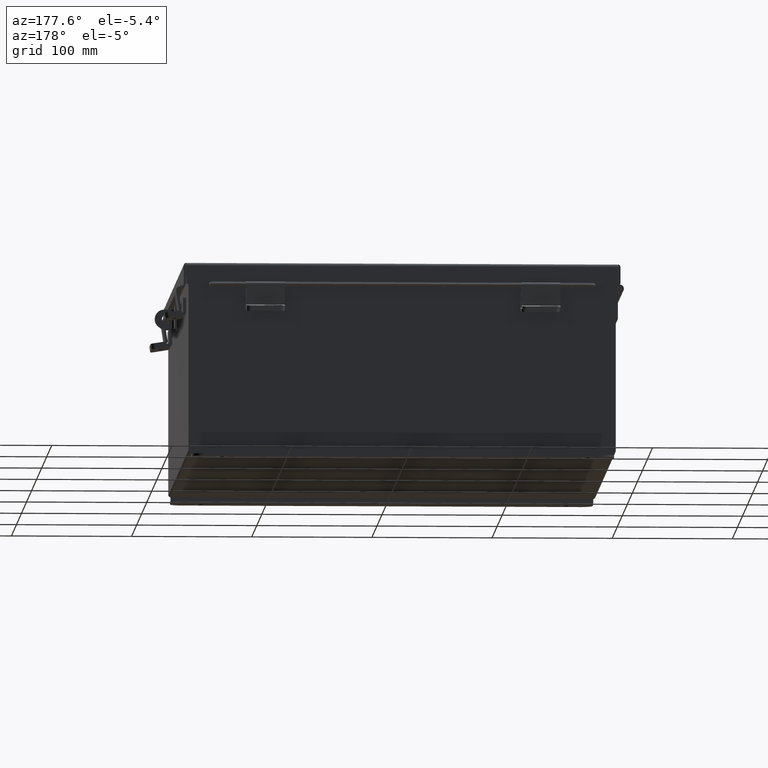
[diagram: clean part render]
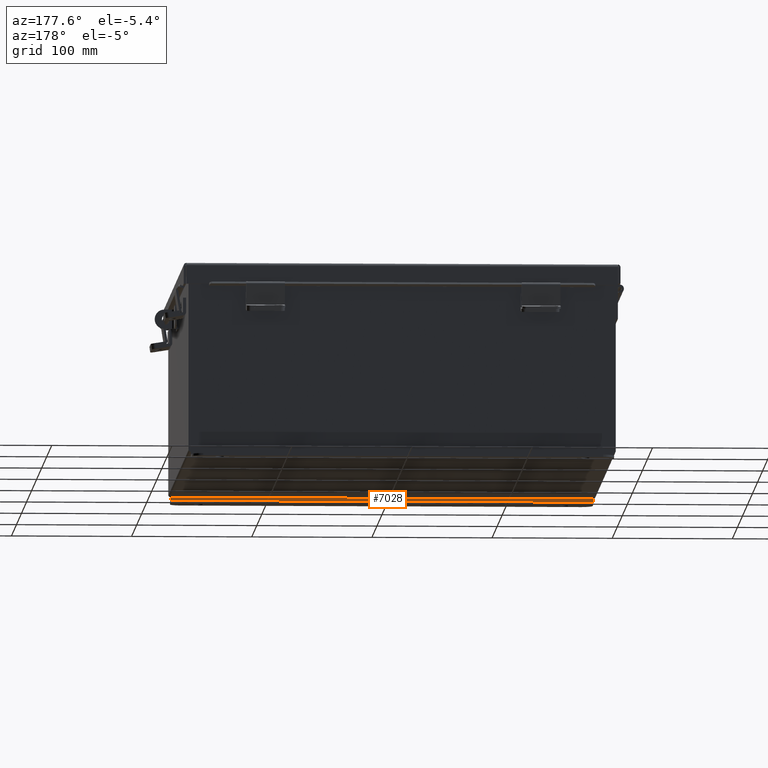
[diagram: same view with one face highlighted and labeled with its STEP entity id]
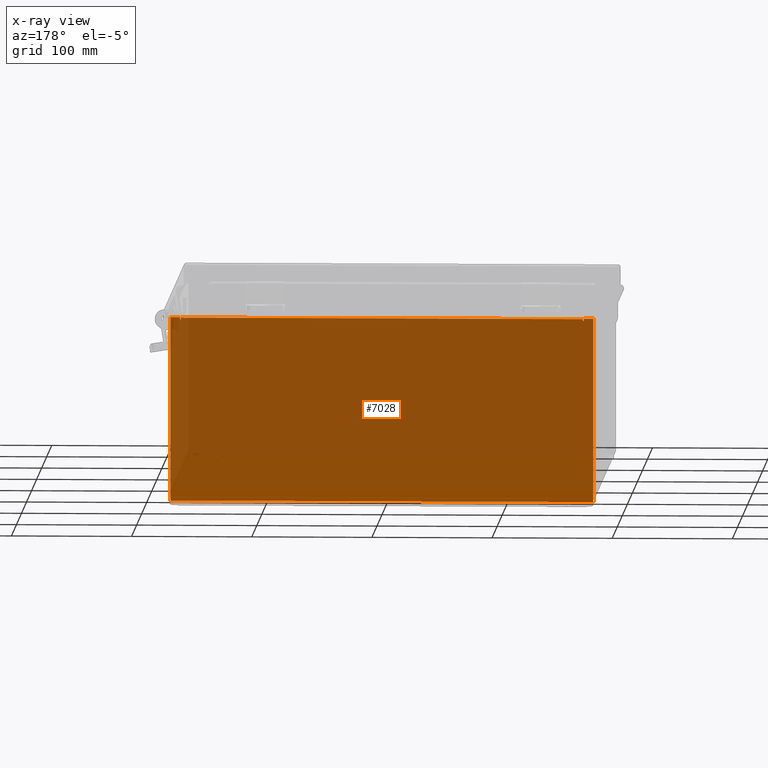
[diagram: x-ray of the same camera — body ghosted, the highlighted face saturated]
A machine part, auxiliary view. The second image highlights one B-rep face of the part: STEP entity #7028.
The next image is the same camera in x-ray: the body ghosted, the highlighted face saturated — about 95% of this face is hidden behind the body in this view.
In plain terms, the highlighted planar face has unit normal (-0, 1, -0).
Its self-contained STEP definition (entity closure, byte-faithful):
#272 = CARTESIAN_POINT ( 'NONE',  ( 6.925300000000007100, -0.07470000000000015500, 2.925300000000001300 ) ) ;
#332 = CARTESIAN_POINT ( 'NONE',  ( -6.925299999999992000, -0.07469999999999142600, 2.925300000000001300 ) ) ;
#717 = LINE ( 'NONE', #8392, #17252 ) ;
#792 = EDGE_CURVE ( 'NONE', #18503, #5689, #3924, .T. ) ;
#810 = ORIENTED_EDGE ( 'NONE', *, *, #15915, .F. ) ;
#1333 = CARTESIAN_POINT ( 'NONE',  ( 6.582300000000007100, -0.07470000000000015500, 2.912299999999997900 ) ) ;
#1521 = DIRECTION ( 'NONE',  ( 0.0000000000000000000, 0.0000000000000000000, 1.000000000000000000 ) ) ;
#1544 = CARTESIAN_POINT ( 'NONE',  ( -6.582299999999990300, -0.07469999999999142600, 2.874949999999998800 ) ) ;
#1793 = VECTOR ( 'NONE', #10428, 39.37007874015748100 ) ;
#2011 = VECTOR ( 'NONE', #1521, 39.37007874015748100 ) ;
#2071 = CARTESIAN_POINT ( 'NONE',  ( -6.925299999999992000, -0.07469999999999142600, 2.925300000000001300 ) ) ;
#2074 = VECTOR ( 'NONE', #14990, 39.37007874015748100 ) ;
#2188 = CARTESIAN_POINT ( 'NONE',  ( 6.619650000000007100, -0.07470000000000015500, 2.874949999999998800 ) ) ;
#2307 = ORIENTED_EDGE ( 'NONE', *, *, #12457, .T. ) ;
#2788 = EDGE_CURVE ( 'NONE', #12034, #13141, #717, .T. ) ;
#2919 = LINE ( 'NONE', #332, #14839 ) ;
#2923 = VERTEX_POINT ( 'NONE', #3354 ) ;
#2950 = VERTEX_POINT ( 'NONE', #1544 ) ;
#3354 = CARTESIAN_POINT ( 'NONE',  ( -6.619649999999990300, -0.07469999999999142600, 2.874949999999998800 ) ) ;
#3423 = VECTOR ( 'NONE', #17203, 39.37007874015748100 ) ;
#3924 = LINE ( 'NONE', #8855, #3423 ) ;
#4095 = CARTESIAN_POINT ( 'NONE',  ( -6.925299999999992000, -0.07469999999999142600, 2.925300000000001300 ) ) ;
#4108 = VERTEX_POINT ( 'NONE', #18091 ) ;
#4765 = DIRECTION ( 'NONE',  ( 1.000000000000000000, 4.910036603141682400E-031, -0.0000000000000000000 ) ) ;
#5083 = CARTESIAN_POINT ( 'NONE',  ( 6.600975000000006300, -0.07469999999999797600, 2.874949999999998800 ) ) ;
#5190 = VERTEX_POINT ( 'NONE', #14986 ) ;
#5607 = VERTEX_POINT ( 'NONE', #14219 ) ;
#5689 = VERTEX_POINT ( 'NONE', #15426 ) ;
#5943 = LINE ( 'NONE', #8863, #1793 ) ;
#6580 = AXIS2_PLACEMENT_3D ( 'NONE', #13870, #13129, #13092 ) ;
#6617 = FACE_OUTER_BOUND ( 'NONE', #8760, .T. ) ;
#6645 = DIRECTION ( 'NONE',  ( 0.0000000000000000000, 0.0000000000000000000, -1.000000000000000000 ) ) ;
#6831 = CARTESIAN_POINT ( 'NONE',  ( -6.600974999999990300, -0.07469999999998923300, 2.874949999999998800 ) ) ;
#7028 = ADVANCED_FACE ( 'NONE', ( #6617 ), #13191, .T. ) ;
#7079 = DIRECTION ( 'NONE',  ( 0.0000000000000000000, 0.0000000000000000000, -1.000000000000000000 ) ) ;
#7560 = EDGE_CURVE ( 'NONE', #4108, #18503, #11533, .T. ) ;
#7613 = CARTESIAN_POINT ( 'NONE',  ( -6.925299999999992000, -0.07469999999999142600, 2.925300000000001300 ) ) ;
#7941 = VERTEX_POINT ( 'NONE', #9395 ) ;
#8392 = CARTESIAN_POINT ( 'NONE',  ( 6.619650000000007100, -0.07469999999999797600, 2.874949999999998800 ) ) ;
#8406 = DIRECTION ( 'NONE',  ( 0.0000000000000000000, 0.0000000000000000000, -1.000000000000000000 ) ) ;
#8451 = AXIS2_PLACEMENT_3D ( 'NONE', #5083, #15965, #6645 ) ;
#8760 = EDGE_LOOP ( 'NONE', ( #11331, #14621, #14022, #810, #2307, #18147, #13362, #15096, #15640, #16856, #18528, #11685 ) ) ;
#8855 = CARTESIAN_POINT ( 'NONE',  ( 6.582300000000007100, -0.07469999999999797600, 2.912299999999997900 ) ) ;
#8863 = CARTESIAN_POINT ( 'NONE',  ( -6.619649999999990300, -0.07469999999999033000, 2.925300000000000000 ) ) ;
#9062 = VERTEX_POINT ( 'NONE', #272 ) ;
#9107 = EDGE_CURVE ( 'NONE', #5689, #12034, #18419, .T. ) ;
#9316 = CARTESIAN_POINT ( 'NONE',  ( -6.582299999999990300, -0.07469999999998923300, 2.874949999999998800 ) ) ;
#9395 = CARTESIAN_POINT ( 'NONE',  ( 6.925300000000007100, -0.07470000000000781600, -3.099299999999995100 ) ) ;
#9833 = VECTOR ( 'NONE', #7079, 39.37007874015748100 ) ;
#10428 = DIRECTION ( 'NONE',  ( 0.0000000000000000000, 2.272018564740578300E-014, -1.000000000000000000 ) ) ;
#11033 = VECTOR ( 'NONE', #17971, 39.37007874015748100 ) ;
#11331 = ORIENTED_EDGE ( 'NONE', *, *, #11999, .F. ) ;
#11533 = LINE ( 'NONE', #13262, #11033 ) ;
#11685 = ORIENTED_EDGE ( 'NONE', *, *, #17425, .F. ) ;
#11824 = EDGE_CURVE ( 'NONE', #9062, #7941, #13953, .T. ) ;
#11999 = EDGE_CURVE ( 'NONE', #2923, #2950, #15166, .T. ) ;
#12034 = VERTEX_POINT ( 'NONE', #2188 ) ;
#12457 = EDGE_CURVE ( 'NONE', #5190, #7941, #19273, .T. ) ;
#12957 = DIRECTION ( 'NONE',  ( 1.000000000000000000, 4.910036603141682400E-031, 0.0000000000000000000 ) ) ;
#13092 = DIRECTION ( 'NONE',  ( 0.0000000000000000000, 0.0000000000000000000, -1.000000000000000000 ) ) ;
#13129 = DIRECTION ( 'NONE',  ( -4.910036603141682400E-031, -1.000000000000000000, -0.0000000000000000000 ) ) ;
#13141 = VERTEX_POINT ( 'NONE', #15339 ) ;
#13191 = PLANE ( 'NONE',  #6580 ) ;
#13262 = CARTESIAN_POINT ( 'NONE',  ( -6.582299999999992000, -0.07469999999998923300, 2.912300000000000100 ) ) ;
#13362 = ORIENTED_EDGE ( 'NONE', *, *, #20140, .F. ) ;
#13863 = DIRECTION ( 'NONE',  ( 2.170286390199955400E-014, -2.272018564740578300E-014, 1.000000000000000000 ) ) ;
#13870 = CARTESIAN_POINT ( 'NONE',  ( 0.0000000000000000000, -0.07470000000000015500, 0.0000000000000000000 ) ) ;
#13953 = LINE ( 'NONE', #16379, #9833 ) ;
#13998 = LINE ( 'NONE', #4095, #2074 ) ;
#14022 = ORIENTED_EDGE ( 'NONE', *, *, #15751, .F. ) ;
#14070 = CARTESIAN_POINT ( 'NONE',  ( -6.925299999999992000, -0.07470000000000015500, -3.099299999999999500 ) ) ;
#14219 = CARTESIAN_POINT ( 'NONE',  ( -6.619649999999990300, -0.07469999999999142600, 2.925300000000000000 ) ) ;
#14621 = ORIENTED_EDGE ( 'NONE', *, *, #16707, .F. ) ;
#14839 = VECTOR ( 'NONE', #19012, 39.37007874015748100 ) ;
#14986 = CARTESIAN_POINT ( 'NONE',  ( -6.925299999999991100, -0.07470000000000015500, -3.099299999999999500 ) ) ;
#14990 = DIRECTION ( 'NONE',  ( 0.0000000000000000000, 0.0000000000000000000, 1.000000000000000000 ) ) ;
#15096 = ORIENTED_EDGE ( 'NONE', *, *, #2788, .F. ) ;
#15166 = CIRCLE ( 'NONE', #19160, 0.01867500000000003900 ) ;
#15339 = CARTESIAN_POINT ( 'NONE',  ( 6.619650000000008000, -0.07470000000000015500, 2.925300000000000000 ) ) ;
#15426 = CARTESIAN_POINT ( 'NONE',  ( 6.582300000000007100, -0.07470000000000015500, 2.874949999999998800 ) ) ;
#15640 = ORIENTED_EDGE ( 'NONE', *, *, #9107, .F. ) ;
#15751 = EDGE_CURVE ( 'NONE', #17351, #5607, #15989, .T. ) ;
#15915 = EDGE_CURVE ( 'NONE', #5190, #17351, #13998, .T. ) ;
#15965 = DIRECTION ( 'NONE',  ( -4.910036603141682400E-031, -1.000000000000000000, 0.0000000000000000000 ) ) ;
#15989 = LINE ( 'NONE', #2071, #16488 ) ;
#16379 = CARTESIAN_POINT ( 'NONE',  ( 6.925300000000007100, -0.07470000000000015500, 2.925300000000001300 ) ) ;
#16488 = VECTOR ( 'NONE', #12957, 39.37007874015748100 ) ;
#16707 = EDGE_CURVE ( 'NONE', #5607, #2923, #5943, .T. ) ;
#16856 = ORIENTED_EDGE ( 'NONE', *, *, #792, .F. ) ;
#17203 = DIRECTION ( 'NONE',  ( 0.0000000000000000000, 0.0000000000000000000, -1.000000000000000000 ) ) ;
#17252 = VECTOR ( 'NONE', #13863, 39.37007874015748100 ) ;
#17351 = VERTEX_POINT ( 'NONE', #7613 ) ;
#17425 = EDGE_CURVE ( 'NONE', #2950, #4108, #19040, .T. ) ;
#17724 = DIRECTION ( 'NONE',  ( -4.910036603141682400E-031, -1.000000000000000000, 0.0000000000000000000 ) ) ;
#17971 = DIRECTION ( 'NONE',  ( 1.000000000000000000, 4.910036603141682400E-031, -0.0000000000000000000 ) ) ;
#18091 = CARTESIAN_POINT ( 'NONE',  ( -6.582299999999990300, -0.07469999999999142600, 2.912300000000000100 ) ) ;
#18147 = ORIENTED_EDGE ( 'NONE', *, *, #11824, .F. ) ;
#18419 = CIRCLE ( 'NONE', #8451, 0.01867500000000003900 ) ;
#18503 = VERTEX_POINT ( 'NONE', #1333 ) ;
#18528 = ORIENTED_EDGE ( 'NONE', *, *, #7560, .F. ) ;
#19012 = DIRECTION ( 'NONE',  ( 1.000000000000000000, 4.910036603141682400E-031, 0.0000000000000000000 ) ) ;
#19040 = LINE ( 'NONE', #9316, #2011 ) ;
#19160 = AXIS2_PLACEMENT_3D ( 'NONE', #6831, #17724, #8406 ) ;
#19273 = LINE ( 'NONE', #14070, #19782 ) ;
#19782 = VECTOR ( 'NONE', #4765, 39.37007874015748100 ) ;
#20140 = EDGE_CURVE ( 'NONE', #13141, #9062, #2919, .T. ) ;